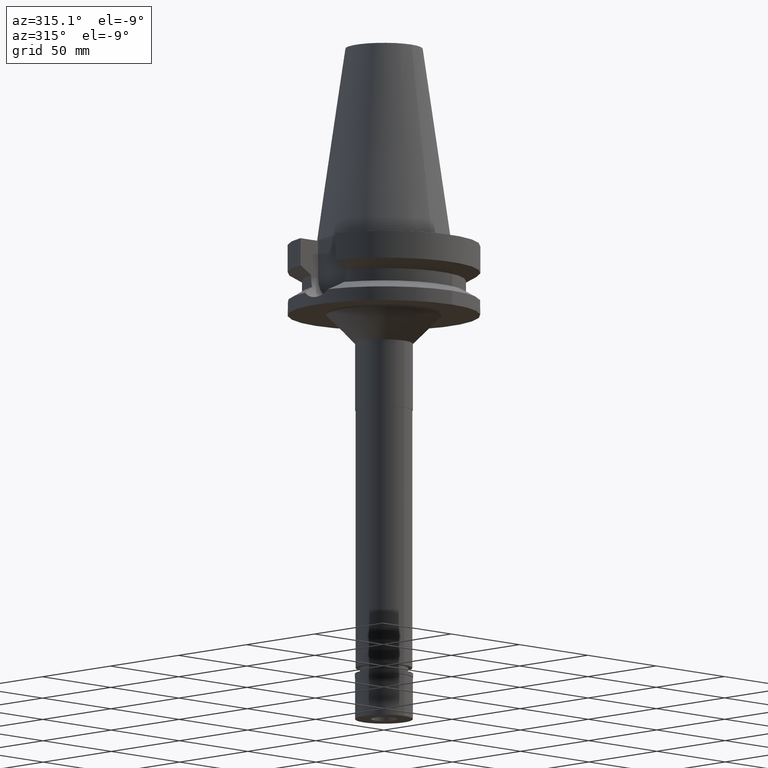
[diagram: clean part render]
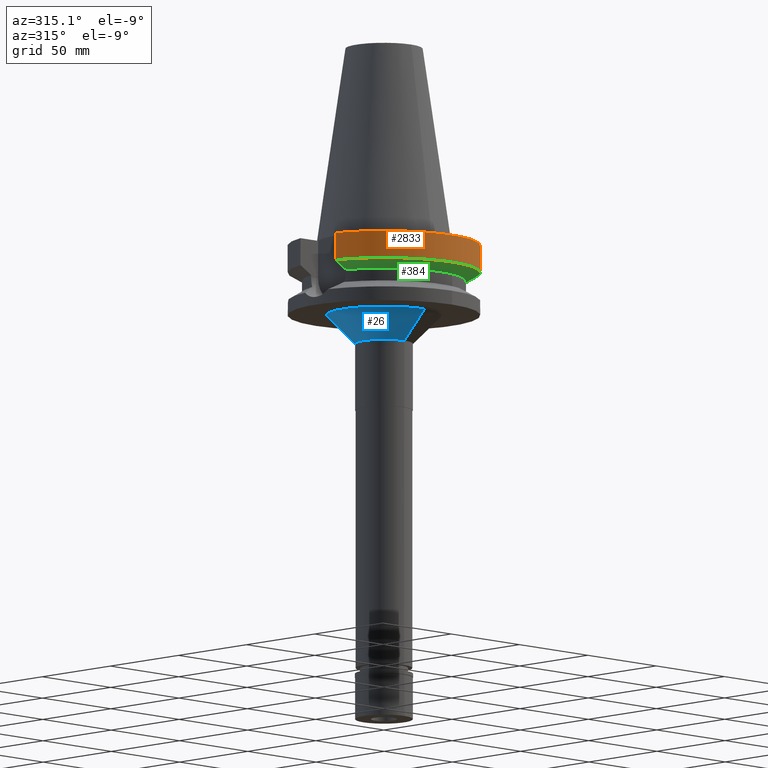
[diagram: same view with three faces highlighted in distinct colors, each labeled with its STEP entity id]
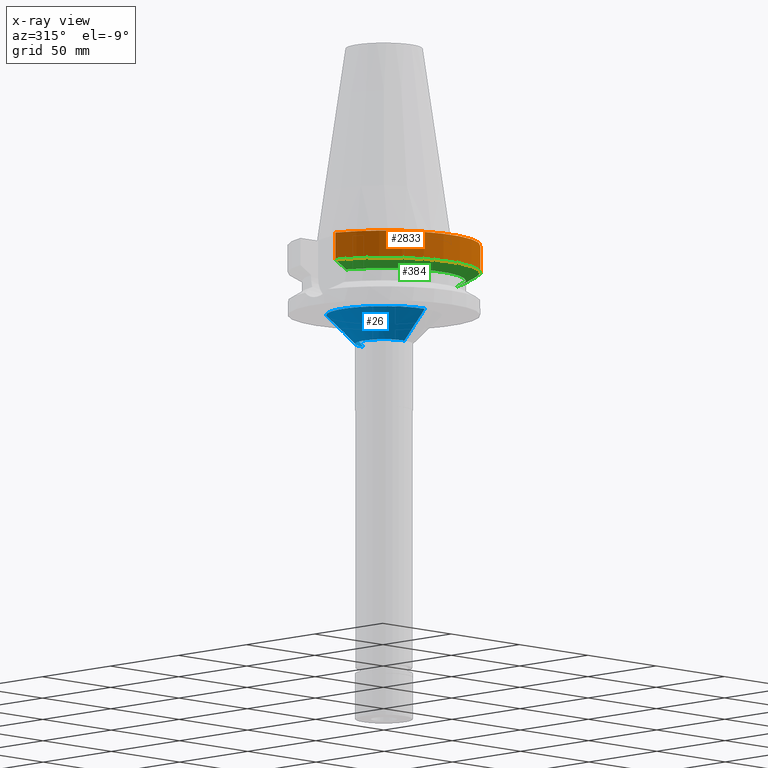
[diagram: x-ray of the same camera — body ghosted, the three highlighted faces saturated]
A machine part, auxiliary view with three faces highlighted in distinct colors.
The next image is the same camera in x-ray (body ghosted, the three faces saturated) — at least one of them is partly hidden behind the body in this view.
Their STEP definitions:

[orange] entity #2833 — the highlighted cylindrical surface (partial cylindrical patch) has radius 50 mm, axis along (0, 0, -1).
#3 = CARTESIAN_POINT ( 'NONE',  ( 0.0000000000000000000, 2.680629378654000054E-14, 118.8900000000000006 ) ) ;
#80 = CARTESIAN_POINT ( 'NONE',  ( -48.32057015392000210, -12.84999999999999964, -1.500000000000000000 ) ) ;
#337 = AXIS2_PLACEMENT_3D ( 'NONE', #1007, #762, #1227 ) ;
#373 = AXIS2_PLACEMENT_3D ( 'NONE', #793, #1508, #2003 ) ;
#416 = DIRECTION ( 'NONE',  ( -7.245256712558713783E-08, -2.724472421615890928E-07, -0.9999999999999603650 ) ) ;
#582 = CARTESIAN_POINT ( 'NONE',  ( 48.32057015392000210, -12.84999999999999964, -15.66269223573000069 ) ) ;
#583 = AXIS2_PLACEMENT_3D ( 'NONE', #3, #1004, #2764 ) ;
#698 = ORIENTED_EDGE ( 'NONE', *, *, #2733, .T. ) ;
#755 = CARTESIAN_POINT ( 'NONE',  ( 48.32057015392000210, -12.84999999999999964, -1.500000000000000000 ) ) ;
#762 = DIRECTION ( 'NONE',  ( 0.0000000000000000000, 0.0000000000000000000, 1.000000000000000000 ) ) ;
#793 = CARTESIAN_POINT ( 'NONE',  ( 0.0000000000000000000, 2.680629378654000054E-14, -1.500000000000000000 ) ) ;
#850 = EDGE_CURVE ( 'NONE', #1440, #1887, #2477, .T. ) ;
#1004 = DIRECTION ( 'NONE',  ( 0.0000000000000000000, 0.0000000000000000000, -1.000000000000000000 ) ) ;
#1007 = CARTESIAN_POINT ( 'NONE',  ( 0.0000000000000000000, 1.006319759053999930E-14, -15.66269223573000069 ) ) ;
#1055 = EDGE_CURVE ( 'NONE', #3212, #1887, #2067, .T. ) ;
#1220 = CARTESIAN_POINT ( 'NONE',  ( -48.32056912814000071, -12.85000385727999905, -15.66265768250999990 ) ) ;
#1227 = DIRECTION ( 'NONE',  ( 0.0000000000000000000, -1.000000000000000000, 0.0000000000000000000 ) ) ;
#1316 = EDGE_CURVE ( 'NONE', #3212, #1548, #1902, .T. ) ;
#1345 = VECTOR ( 'NONE', #1489, 1000.000000000000114 ) ;
#1391 = VECTOR ( 'NONE', #416, 999.9999999999998863 ) ;
#1440 = VERTEX_POINT ( 'NONE', #755 ) ;
#1449 = ORIENTED_EDGE ( 'NONE', *, *, #850, .F. ) ;
#1489 = DIRECTION ( 'NONE',  ( -7.242826062940713647E-08, 2.723558434545890236E-07, 0.9999999999999603650 ) ) ;
#1492 = FACE_OUTER_BOUND ( 'NONE', #1564, .T. ) ;
#1508 = DIRECTION ( 'NONE',  ( 0.0000000000000000000, 0.0000000000000000000, -1.000000000000000000 ) ) ;
#1548 = VERTEX_POINT ( 'NONE', #80 ) ;
#1564 = EDGE_LOOP ( 'NONE', ( #3056, #2344, #1449, #698 ) ) ;
#1887 = VERTEX_POINT ( 'NONE', #582 ) ;
#1902 = LINE ( 'NONE', #2517, #1345 ) ;
#2003 = DIRECTION ( 'NONE',  ( 0.0000000000000000000, -1.000000000000000000, 0.0000000000000000000 ) ) ;
#2067 = CIRCLE ( 'NONE', #337, 50.00000000000000000 ) ;
#2344 = ORIENTED_EDGE ( 'NONE', *, *, #1055, .T. ) ;
#2477 = LINE ( 'NONE', #2895, #1391 ) ;
#2508 = CYLINDRICAL_SURFACE ( 'NONE', #583, 50.00000000000000000 ) ;
#2517 = CARTESIAN_POINT ( 'NONE',  ( -48.32056912814000071, -12.85000385727999905, -15.66265768250999990 ) ) ;
#2733 = EDGE_CURVE ( 'NONE', #1440, #1548, #2838, .T. ) ;
#2764 = DIRECTION ( 'NONE',  ( 0.0000000000000000000, -1.000000000000000000, 0.0000000000000000000 ) ) ;
#2833 = ADVANCED_FACE ( 'NONE', ( #1492 ), #2508, .T. ) ;
#2838 = CIRCLE ( 'NONE', #373, 50.00000000000000000 ) ;
#2895 = CARTESIAN_POINT ( 'NONE',  ( 48.32057015392000210, -12.84999999999999964, -1.500000000000000000 ) ) ;
#3056 = ORIENTED_EDGE ( 'NONE', *, *, #1316, .F. ) ;
#3212 = VERTEX_POINT ( 'NONE', #1220 ) ;

[blue] entity #26 — the highlighted conical surface has half-angle 45 deg.
#12 = DIRECTION ( 'NONE',  ( 0.0000000000000000000, 0.0000000000000000000, -1.000000000000000000 ) ) ;
#26 = ADVANCED_FACE ( 'NONE', ( #2821 ), #2213, .T. ) ;
#81 = ORIENTED_EDGE ( 'NONE', *, *, #1909, .T. ) ;
#127 = VERTEX_POINT ( 'NONE', #250 ) ;
#180 = EDGE_CURVE ( 'NONE', #127, #1777, #346, .T. ) ;
#224 = AXIS2_PLACEMENT_3D ( 'NONE', #1365, #1589, #588 ) ;
#250 = CARTESIAN_POINT ( 'NONE',  ( 0.0000000000000000000, 30.00000000000000000, -38.00000000000000000 ) ) ;
#255 = CARTESIAN_POINT ( 'NONE',  ( 0.0000000000000000000, 0.0000000000000000000, -53.00000000000000000 ) ) ;
#346 = LINE ( 'NONE', #1613, #1594 ) ;
#390 = DIRECTION ( 'NONE',  ( 0.0000000000000000000, 0.7071067811865474617, -0.7071067811865474617 ) ) ;
#588 = DIRECTION ( 'NONE',  ( 0.0000000000000000000, 1.000000000000000000, 0.0000000000000000000 ) ) ;
#636 = VECTOR ( 'NONE', #390, 1000.000000000000114 ) ;
#722 = CARTESIAN_POINT ( 'NONE',  ( 0.0000000000000000000, -30.00000000000000000, -38.00000000000000000 ) ) ;
#791 = ORIENTED_EDGE ( 'NONE', *, *, #948, .F. ) ;
#817 = CARTESIAN_POINT ( 'NONE',  ( 0.0000000000000000000, -30.00000000000000000, -38.00000000000000000 ) ) ;
#948 = EDGE_CURVE ( 'NONE', #2407, #1777, #1705, .T. ) ;
#1348 = CIRCLE ( 'NONE', #2652, 30.00000000000000000 ) ;
#1355 = DIRECTION ( 'NONE',  ( 0.0000000000000000000, -0.7071067811865474617, -0.7071067811865474617 ) ) ;
#1365 = CARTESIAN_POINT ( 'NONE',  ( 0.0000000000000000000, 0.0000000000000000000, -45.50000000000000000 ) ) ;
#1419 = LINE ( 'NONE', #722, #636 ) ;
#1589 = DIRECTION ( 'NONE',  ( 0.0000000000000000000, 0.0000000000000000000, 1.000000000000000000 ) ) ;
#1594 = VECTOR ( 'NONE', #1355, 1000.000000000000114 ) ;
#1613 = CARTESIAN_POINT ( 'NONE',  ( 0.0000000000000000000, 30.00000000000000000, -38.00000000000000000 ) ) ;
#1681 = ORIENTED_EDGE ( 'NONE', *, *, #3202, .F. ) ;
#1705 = CIRCLE ( 'NONE', #1861, 15.00000000000000000 ) ;
#1777 = VERTEX_POINT ( 'NONE', #2176 ) ;
#1834 = VERTEX_POINT ( 'NONE', #817 ) ;
#1861 = AXIS2_PLACEMENT_3D ( 'NONE', #255, #1984, #2952 ) ;
#1890 = CARTESIAN_POINT ( 'NONE',  ( 0.0000000000000000000, -15.00000000000000000, -53.00000000000000000 ) ) ;
#1909 = EDGE_CURVE ( 'NONE', #1834, #127, #1348, .T. ) ;
#1928 = ORIENTED_EDGE ( 'NONE', *, *, #180, .T. ) ;
#1984 = DIRECTION ( 'NONE',  ( 0.0000000000000000000, 0.0000000000000000000, -1.000000000000000000 ) ) ;
#2176 = CARTESIAN_POINT ( 'NONE',  ( 0.0000000000000000000, 15.00000000000000000, -53.00000000000000000 ) ) ;
#2191 = EDGE_LOOP ( 'NONE', ( #791, #1681, #81, #1928 ) ) ;
#2213 = CONICAL_SURFACE ( 'NONE', #224, 22.50000000000000000, 0.7853981633972997312 ) ;
#2256 = CARTESIAN_POINT ( 'NONE',  ( 0.0000000000000000000, 0.0000000000000000000, -38.00000000000000000 ) ) ;
#2269 = DIRECTION ( 'NONE',  ( 0.0000000000000000000, -1.000000000000000000, 0.0000000000000000000 ) ) ;
#2407 = VERTEX_POINT ( 'NONE', #1890 ) ;
#2652 = AXIS2_PLACEMENT_3D ( 'NONE', #2256, #12, #2269 ) ;
#2821 = FACE_OUTER_BOUND ( 'NONE', #2191, .T. ) ;
#2952 = DIRECTION ( 'NONE',  ( 0.0000000000000000000, -1.000000000000000000, 0.0000000000000000000 ) ) ;
#3202 = EDGE_CURVE ( 'NONE', #1834, #2407, #1419, .T. ) ;

[green] entity #384 — the highlighted conical surface has half-angle 60 deg.
#156 = ORIENTED_EDGE ( 'NONE', *, *, #2559, .T. ) ;
#303 = ORIENTED_EDGE ( 'NONE', *, *, #1055, .F. ) ;
#319 = VERTEX_POINT ( 'NONE', #512 ) ;
#323 = CARTESIAN_POINT ( 'NONE',  ( 0.0000000000000000000, 1.006319759053999930E-14, -17.82775574519000017 ) ) ;
#337 = AXIS2_PLACEMENT_3D ( 'NONE', #1007, #762, #1227 ) ;
#384 = ADVANCED_FACE ( 'NONE', ( #1871 ), #2116, .T. ) ;
#512 = CARTESIAN_POINT ( 'NONE',  ( 40.51083188481999997, -12.84999999999999964, -19.99281925464999787 ) ) ;
#582 = CARTESIAN_POINT ( 'NONE',  ( 48.32057015392000210, -12.84999999999999964, -15.66269223573000069 ) ) ;
#762 = DIRECTION ( 'NONE',  ( 0.0000000000000000000, 0.0000000000000000000, 1.000000000000000000 ) ) ;
#883 = CARTESIAN_POINT ( 'NONE',  ( 0.0000000000000000000, 1.006319759053999930E-14, -19.99281925464999787 ) ) ;
#1007 = CARTESIAN_POINT ( 'NONE',  ( 0.0000000000000000000, 1.006319759053999930E-14, -15.66269223573000069 ) ) ;
#1055 = EDGE_CURVE ( 'NONE', #3212, #1887, #2067, .T. ) ;
#1109 = DIRECTION ( 'NONE',  ( 0.0000000000000000000, 0.0000000000000000000, -1.000000000000000000 ) ) ;
#1156 = CARTESIAN_POINT ( 'NONE',  ( -40.51083297203000200, -12.84999657244999938, -19.99284555869999735 ) ) ;
#1220 = CARTESIAN_POINT ( 'NONE',  ( -48.32056912814000071, -12.85000385727999905, -15.66265768250999990 ) ) ;
#1227 = DIRECTION ( 'NONE',  ( 0.0000000000000000000, -1.000000000000000000, 0.0000000000000000000 ) ) ;
#1597 = AXIS2_PLACEMENT_3D ( 'NONE', #323, #2837, #2095 ) ;
#1627 = CIRCLE ( 'NONE', #2047, 42.50000000000002132 ) ;
#1801 = ORIENTED_EDGE ( 'NONE', *, *, #2412, .F. ) ;
#1803 = B_SPLINE_CURVE_WITH_KNOTS ( 'NONE', 3,
 ( #1940, #2192, #1926, #2909 ),
 .UNSPECIFIED., .F., .F.,
 ( 4, 4 ),
 ( 0.0000000000000000000, 1.000000000000000000 ),
 .UNSPECIFIED. ) ;
#1809 = EDGE_LOOP ( 'NONE', ( #156, #1801, #1974, #303 ) ) ;
#1830 = DIRECTION ( 'NONE',  ( 0.9531960443486575674, -0.3023529411764863672, 0.0000000000000000000 ) ) ;
#1871 = FACE_OUTER_BOUND ( 'NONE', #1809, .T. ) ;
#1887 = VERTEX_POINT ( 'NONE', #582 ) ;
#1926 = CARTESIAN_POINT ( 'NONE',  ( -42.90862489405132152, -12.84999313793018416, -18.67324780319469113 ) ) ;
#1940 = CARTESIAN_POINT ( 'NONE',  ( -48.32056912814000071, -12.85000385727999905, -15.66265768250999990 ) ) ;
#1974 = ORIENTED_EDGE ( 'NONE', *, *, #2090, .T. ) ;
#2047 = AXIS2_PLACEMENT_3D ( 'NONE', #883, #1109, #1830 ) ;
#2067 = CIRCLE ( 'NONE', #337, 50.00000000000000000 ) ;
#2090 = EDGE_CURVE ( 'NONE', #319, #1887, #2399, .T. ) ;
#2095 = DIRECTION ( 'NONE',  ( 0.0000000000000000000, 1.000000000000000000, 0.0000000000000000000 ) ) ;
#2116 = CONICAL_SURFACE ( 'NONE', #1597, 46.25000000000000000, 1.047197551196400456 ) ;
#2192 = CARTESIAN_POINT ( 'NONE',  ( -45.51179901536024630, -12.85000770991706176, -17.22986705878139446 ) ) ;
#2399 = B_SPLINE_CURVE_WITH_KNOTS ( 'NONE', 3,
 ( #2635, #3144, #2907, #3095 ),
 .UNSPECIFIED., .F., .F.,
 ( 4, 4 ),
 ( 0.0000000000000000000, 1.000000000000000000 ),
 .UNSPECIFIED. ) ;
#2412 = EDGE_CURVE ( 'NONE', #319, #2455, #1627, .T. ) ;
#2455 = VERTEX_POINT ( 'NONE', #1156 ) ;
#2559 = EDGE_CURVE ( 'NONE', #3212, #2455, #1803, .T. ) ;
#2635 = CARTESIAN_POINT ( 'NONE',  ( 40.51083188481999997, -12.84999999999999964, -19.99281925464999787 ) ) ;
#2837 = DIRECTION ( 'NONE',  ( 0.0000000000000000000, 0.0000000000000000000, 1.000000000000000000 ) ) ;
#2907 = CARTESIAN_POINT ( 'NONE',  ( 45.51179445178392058, -12.85000771150626164, -17.22986957498880045 ) ) ;
#2909 = CARTESIAN_POINT ( 'NONE',  ( -40.51083297203000200, -12.84999657244999938, -19.99284555869999735 ) ) ;
#3095 = CARTESIAN_POINT ( 'NONE',  ( 48.32057015392000210, -12.84999999999999964, -15.66269223573000069 ) ) ;
#3144 = CARTESIAN_POINT ( 'NONE',  ( 42.90862839481754065, -12.84999314232167578, -18.67324584529458065 ) ) ;
#3212 = VERTEX_POINT ( 'NONE', #1220 ) ;